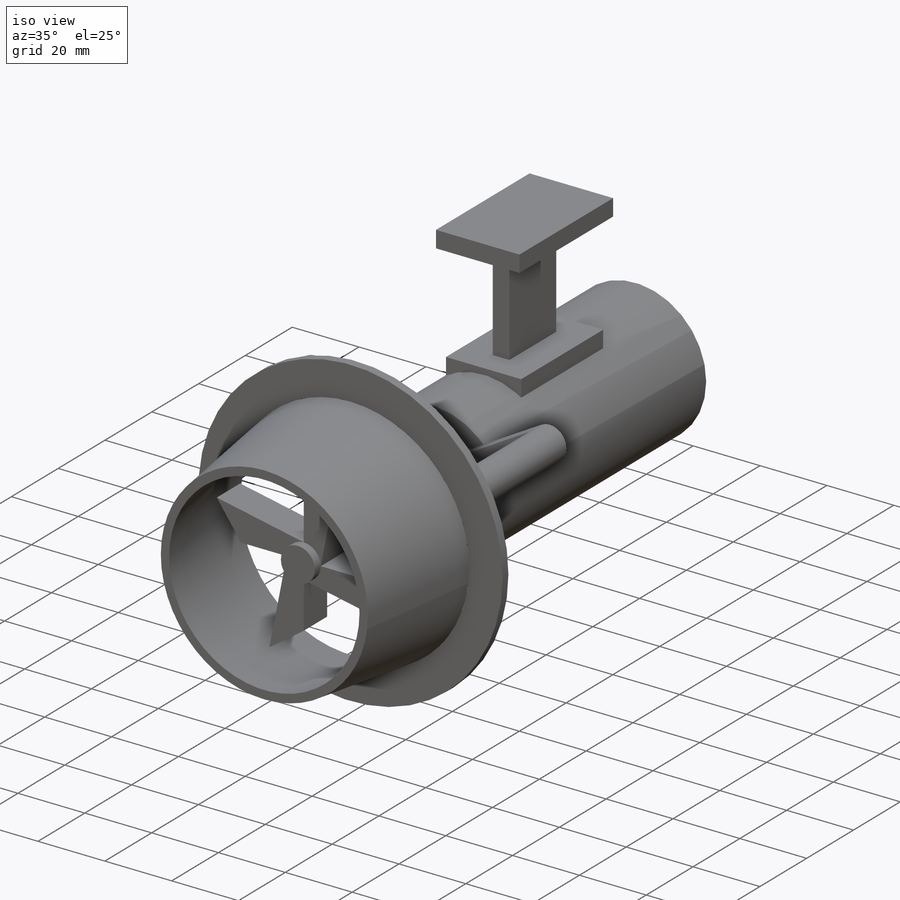
[diagram: iso view]
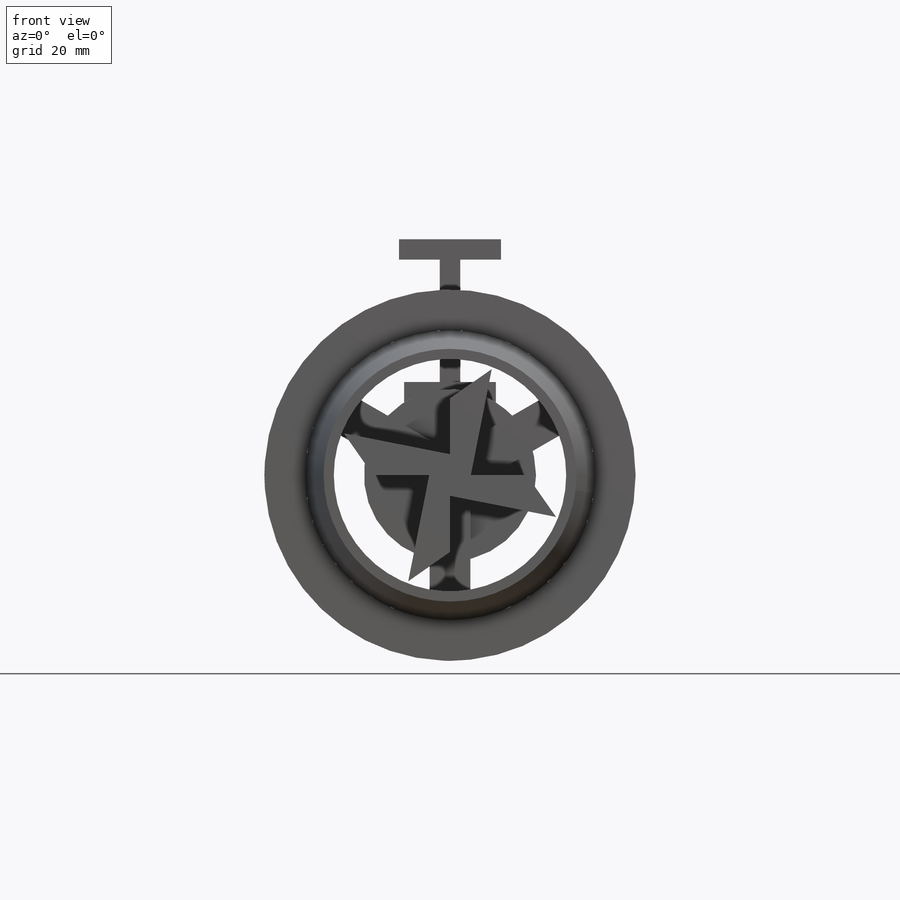
[diagram: front view]
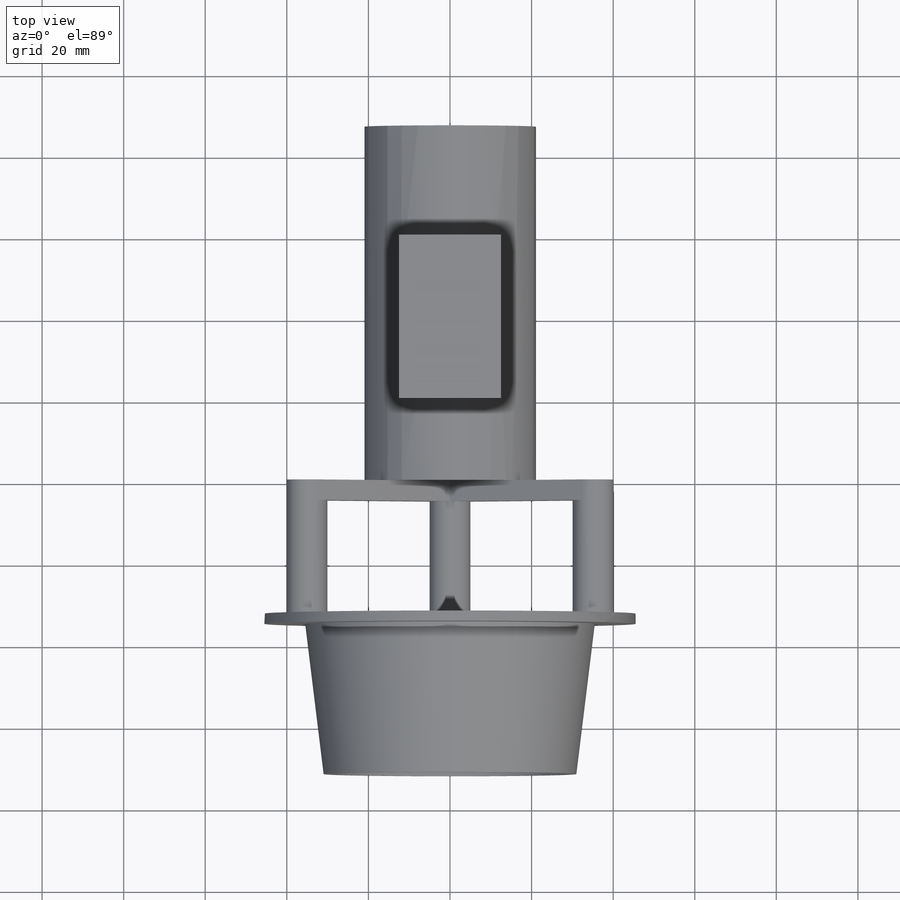
[diagram: top view]
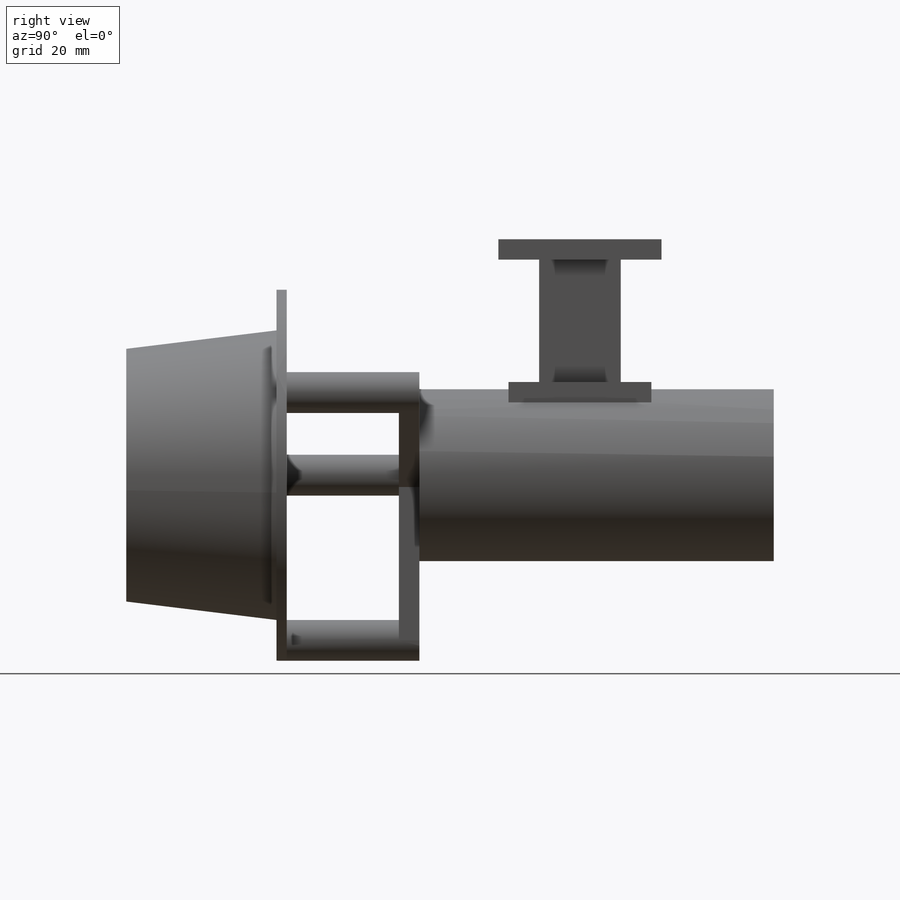
[diagram: right view]
SOLIDWORKS PART (.sldprt)
format: sldprt  version: not decoded by parser v0  size: 711,680 bytes
history: native  units: mm
features: sketch x14, extrude x11, cut_extrude x3, material x1 (+12 scaffold rows collapsed)
feature tree (41):
  scaffold x12  (default folders/planes/origin — collapsed)
  material  "Material <not specified>"
  sketch  "Sketch1"  dims[D1=42.19mm]
  extrude  "Boss-Extrude1"  Depth=86.87mm
  sketch  "Sketch2"  dims[c1.D1=71.0mm c1.D2=10.0mm c1.D3=10.0mm c1.D4=10.0mm c1.D7=~3.088085mm c1.D8=~11.547005mm c2.D7=~11.546293mm c2.D9=5.0mm c2.D5=55.0mm c2.D6=55.0mm c3.D5=~17.937589mm c3.D6=30.5mm c3.D7=~27.613249mm c3.D8=~27.613249mm c3.D9=~27.613249mm c3.D10=~27.613249mm c3.D11=~27.613249mm c3.D12=~27.613249mm c3.D13=~11.226837mm c4.D13=120.0deg c4.D14=~22.336703mm c5.D14=120.0deg c5.D15=~27.613249mm c6.D15=120.0deg c6.D16=40.5mm c6.D17=40.5mm c6.D18=40.5mm c6.D19=~5.773503mm c6.D20=~5.773503mm c6.D21=~5.741768mm c6.D7=~5.773147mm c6.D8=~32.669485mm c7.D8=60.0deg c7.D9=~15.401774mm c8.D9=60.0deg c9.D9=~8.979505mm c10.D9=60.0deg c10.D10=~17.92525mm c11.D10=~61.620205deg c12.D10=~37.712441mm c13.D10=60.0deg c13.D8=~32.658469mm c14.D8=~1.80121deg c14.D7=10.0mm c15.D8=10.0mm c15.D9=~32.574029mm c15.D10=~35.074029mm c15.D11=~37.574029mm c15.D12=~32.574029mm c15.D13=~35.074029mm c15.D14=~37.574029mm c16.D9=~5.773508mm c16.D10=~15.919873mm c16.D11=20.25mm c16.D12=~24.580127mm c16.D13=40.5mm c17.D9=40.5mm c17.D5=120.0deg c17.D6=120.0deg c17.D7=~154.122855deg c18.D7=5.0mm c18.D8=5.0mm c18.D9=5.0mm c18.D10=5.0mm c18.D11=5.0mm c18.D12=5.0mm]
  extrude  "Boss-Extrude2"  Depth=5mm
  sketch  "Sketch3"  dims[D1=10.0mm]
  extrude  "Boss-Extrude3"  Depth=30mm
  sketch  "Sketch4"  dims[D1=71.0mm]
  extrude  "Boss-Extrude4"  Depth=36.83mm
  sketch  "Sketch6"  dims[D1=10.0mm]
  extrude  "Boss-Extrude5"  Depth=2.5mm
  sketch  "Sketch8"  dims[D1=2.5mm]
  cut_extrude  "Cut-Extrude2"  [1 undecoded]
  sketch  "Sketch9"  dims[D1=71.0mm]
  cut_extrude  "Cut-Extrude3"  Depth=2.5mm
  sketch  "Sketch11"  dims[D1=10.0mm]
  extrude  "Boss-Extrude6"  Depth=40mm
  sketch  "Sketch12"  dims[c1.D1=12.5mm c1.D2=27.5mm c1.D3=12.5mm c2.D3=125.0deg c2.D4=4.0]
  extrude  "Boss-Extrude7"  Depth=10mm
  sketch  "Sketch13"  dims[D1=~10.193617mm]
  extrude  "Boss-Extrude8"  Depth=2.5mm
  sketch  "Sketch14"  dims[D1=5.0mm D2=5.0mm D3=22.5mm D4=11.25mm]
  extrude  "Boss-Extrude9"  Depth=65mm
  sketch  "Sketch15"  dims[D1=42.19mm]
  cut_extrude  "Cut-Extrude4"  Depth=30mm
  sketch  "Sketch16"  dims[c1.D1=~18.769564mm c1.D2=~8.592506mm c2.D1=5.0mm c2.D2=20.0mm c2.D3=8.75mm c2.D4=7.5mm]
  extrude  "Boss-Extrude10"  Depth=30mm
  sketch  "Sketch17"  dims[c1.D1=~44.690128mm c1.D2=~27.043107mm c2.D1=25.0mm c2.D2=40.0mm c2.D3=10.0mm c2.D4=10.0mm]
  extrude  "Boss-Extrude11"  Depth=5mm
decode coverage: 27 of 28 modeling features carry decoded parameters
note: ~ marks probable driven/reference dimensions
note: 1 parameter value undecoded
note: suppression state not decoded; provenance and decode notes live in map.json
